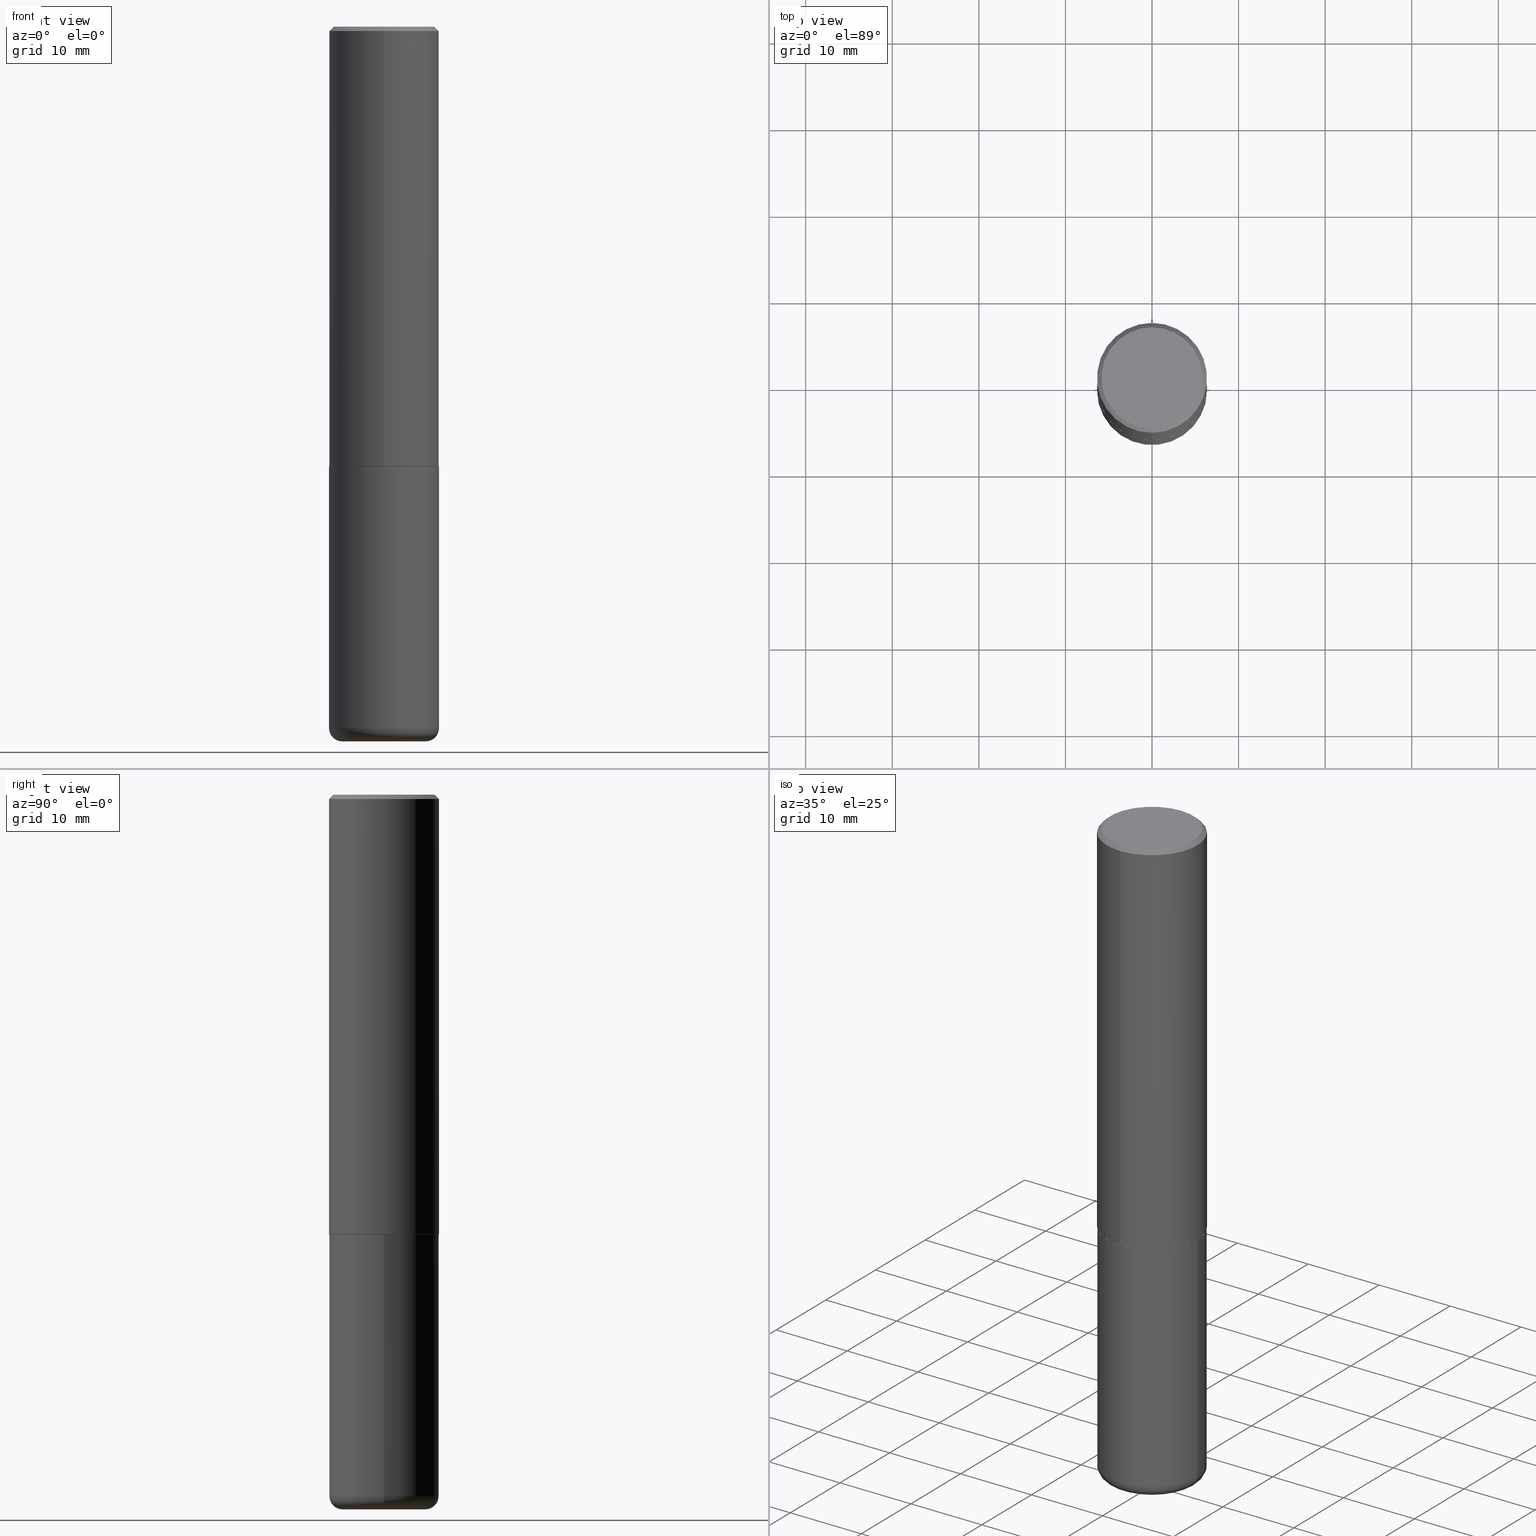
[diagram: canonical four-view strip — front | top / right | iso, engineering-drawing reading convention]
A machine part, canonical four-view strip (front | top / right | iso — engineering-drawing reading convention). The complete STEP part file that produces these views, byte-faithful:
ISO-10303-21;
HEADER;
FILE_DESCRIPTION (( 'STEP AP203' ),
    '1' );
FILE_NAME ('37193.STEP',
    '2024-03-01T21:40:54',
    ( '' ),
    ( '' ),
    'SwSTEP 2.0',
    'SolidWorks 2023',
    '' );
FILE_SCHEMA (( 'CONFIG_CONTROL_DESIGN' ));
ENDSEC;

DATA;
#1 = CARTESIAN_POINT ( 'NONE',  ( 4.890937612370273194E-29, -6.982962677686291165E-15, -2.000000000000000000 ) ) ;
#2 = ORIENTED_EDGE ( 'NONE', *, *, #35, .F. ) ;
#3 = AXIS2_PLACEMENT_3D ( 'NONE', #159, #384, #24 ) ;
#4 = LINE ( 'NONE', #234, #316 ) ;
#5 = EDGE_CURVE ( 'NONE', #296, #109, #32, .T. ) ;
#6 = ORIENTED_EDGE ( 'NONE', *, *, #71, .F. ) ;
#7 = LINE ( 'NONE', #360, #60 ) ;
#8 = ORIENTED_EDGE ( 'NONE', *, *, #16, .F. ) ;
#9 =( NAMED_UNIT ( * ) PLANE_ANGLE_UNIT ( ) SI_UNIT ( $, .RADIAN. ) );
#10 = VECTOR ( 'NONE', #123, 39.37007874015748143 ) ;
#11 = AXIS2_PLACEMENT_3D ( 'NONE', #41, #49, #271 ) ;
#12 = DIRECTION ( 'NONE',  ( -6.982962677686266711E-15, -1.000000000000000000, 3.491481338843145583E-15 ) ) ;
#13 = COORDINATED_UNIVERSAL_TIME_OFFSET ( 5, 0, .BEHIND. ) ;
#14 = ORIENTED_EDGE ( 'NONE', *, *, #314, .F. ) ;
#15 = DIRECTION ( 'NONE',  ( -2.444914538755677752E-29, 3.492275081349073750E-15, 1.000000000000000000 ) ) ;
#16 = EDGE_CURVE ( 'NONE', #335, #272, #388, .T. ) ;
#17 = AXIS2_PLACEMENT_3D ( 'NONE', #98, #253, #90 ) ;
#18 = ORIENTED_EDGE ( 'NONE', *, *, #127, .F. ) ;
#19 = COORDINATED_UNIVERSAL_TIME_OFFSET ( 5, 0, .BEHIND. ) ;
#20 = DIRECTION ( 'NONE',  ( -2.444914538755677752E-29, 3.492275081349073750E-15, 1.000000000000000000 ) ) ;
#21 = CALENDAR_DATE ( 2024, 1, 3 ) ;
#22 = CARTESIAN_POINT ( 'NONE',  ( 4.889829077511355503E-29, -6.984550162698146711E-15, -2.000000000000000000 ) ) ;
#23 = AXIS2_PLACEMENT_3D ( 'NONE', #269, #72, #233 ) ;
#24 = DIRECTION ( 'NONE',  ( -6.982962677686265133E-15, -1.000000000000000000, 3.291383124896702687E-15 ) ) ;
#25 = CARTESIAN_POINT ( 'NONE',  ( 4.889829077511355503E-29, -6.984550162698146711E-15, -2.000000000000000000 ) ) ;
#26 = DIRECTION ( 'NONE',  ( -6.982962677686265922E-15, -1.000000000000000000, 3.500180241882337261E-15 ) ) ;
#27 = DIRECTION ( 'NONE',  ( 1.000000000000000000, -6.982962677686263555E-15, 0.000000000000000000 ) ) ;
#28 = PERSON_AND_ORGANIZATION ( #393, #102 ) ;
#29 = PLANE ( 'NONE',  #402 ) ;
#30 = ADVANCED_FACE ( 'NONE', ( #79 ), #213, .T. ) ;
#31 = PERSON_AND_ORGANIZATION ( #393, #102 ) ;
#32 = CIRCLE ( 'NONE', #362, 0.05999999999999994227 ) ;
#33 = CIRCLE ( 'NONE', #174, 0.2500000000000000000 ) ;
#34 = VERTEX_POINT ( 'NONE', #405 ) ;
#35 = EDGE_CURVE ( 'NONE', #44, #109, #107, .T. ) ;
#36 = FACE_OUTER_BOUND ( 'NONE', #292, .T. ) ;
#37 = ORIENTED_EDGE ( 'NONE', *, *, #273, .T. ) ;
#38 = AXIS2_PLACEMENT_3D ( 'NONE', #221, #322, #350 ) ;
#39 = VERTEX_POINT ( 'NONE', #112 ) ;
#40 = ORIENTED_EDGE ( 'NONE', *, *, #127, .T. ) ;
#41 = CARTESIAN_POINT ( 'NONE',  ( 7.947773620101693940E-29, -1.134731435124022443E-14, -3.250000000000000000 ) ) ;
#42 = CARTESIAN_POINT ( 'NONE',  ( 0.000000000000000000, 0.000000000000000000, 0.000000000000000000 ) ) ;
#43 = MANIFOLD_SOLID_BREP ( 'Body-Move/Copy2[2]', #115 ) ;
#44 = VERTEX_POINT ( 'NONE', #120 ) ;
#45 = EDGE_CURVE ( 'NONE', #272, #335, #165, .T. ) ;
#46 = CIRCLE ( 'NONE', #330, 0.2500000000000000000 ) ;
#47 = AXIS2_PLACEMENT_3D ( 'NONE', #111, #78, #220 ) ;
#48 = ORIENTED_EDGE ( 'NONE', *, *, #45, .T. ) ;
#49 = DIRECTION ( 'NONE',  ( -2.445468806185136597E-29, 3.491481338843145583E-15, 1.000000000000000000 ) ) ;
#50 = DIRECTION ( 'NONE',  ( 1.000000000000000000, -6.982962677686266711E-15, 4.876176775795935793E-29 ) ) ;
#51 = EDGE_CURVE ( 'NONE', #39, #300, #373, .T. ) ;
#52 = ORIENTED_EDGE ( 'NONE', *, *, #100, .F. ) ;
#53 = CARTESIAN_POINT ( 'NONE',  ( 0.000000000000000000, 0.000000000000000000, 0.000000000000000000 ) ) ;
#54 = CC_DESIGN_PERSON_AND_ORGANIZATION_ASSIGNMENT ( #28, #158, ( #332 ) ) ;
#55 = AXIS2_PLACEMENT_3D ( 'NONE', #42, #366, #265 ) ;
#56 = PERSON_AND_ORGANIZATION ( #393, #102 ) ;
#57 = DIRECTION ( 'NONE',  ( 1.000000000000000000, -6.982962677686266711E-15, 0.000000000000000000 ) ) ;
#58 = DIRECTION ( 'NONE',  ( -2.445468806185136877E-29, 3.491481338843145188E-15, 1.000000000000000000 ) ) ;
#59 = CARTESIAN_POINT ( 'NONE',  ( -1.745740669421567467E-15, -0.2500000000000001110, 8.730687703372688319E-16 ) ) ;
#60 = VECTOR ( 'NONE', #170, 39.37007874015748143 ) ;
#61 = DIRECTION ( 'NONE',  ( -2.445468806185136597E-29, 3.491481338843145583E-15, 1.000000000000000000 ) ) ;
#62 = PERSON_AND_ORGANIZATION ( #393, #102 ) ;
#63 = DIRECTION ( 'NONE',  ( -2.445468806185136597E-29, 3.491481338843145583E-15, 1.000000000000000000 ) ) ;
#64 = ADVANCED_FACE ( 'NONE', ( #351 ), #197, .T. ) ;
#65 = DIRECTION ( 'NONE',  ( 1.000000000000000000, -6.982962677686266711E-15, 4.876176775795935793E-29 ) ) ;
#66 = COORDINATED_UNIVERSAL_TIME_OFFSET ( 5, 0, .BEHIND. ) ;
#67 = ORIENTED_EDGE ( 'NONE', *, *, #243, .F. ) ;
#68 = ORIENTED_EDGE ( 'NONE', *, *, #93, .F. ) ;
#69 = CARTESIAN_POINT ( 'NONE',  ( 1.772804125721499264E-15, 0.2489999999999930047, -2.000000000000000888 ) ) ;
#70 = CIRCLE ( 'NONE', #324, 0.2499999999999999722 ) ;
#71 = EDGE_CURVE ( 'NONE', #169, #329, #46, .T. ) ;
#72 = DIRECTION ( 'NONE',  ( -2.444914538755677752E-29, 3.492275081349073750E-15, 1.000000000000000000 ) ) ;
#73 = ORIENTED_EDGE ( 'NONE', *, *, #45, .F. ) ;
#74 = AXIS2_PLACEMENT_3D ( 'NONE', #202, #260, #389 ) ;
#75 = EDGE_LOOP ( 'NONE', ( #331, #207, #203, #52 ) ) ;
#76 = CARTESIAN_POINT ( 'NONE',  ( 0.000000000000000000, 0.000000000000000000, 0.000000000000000000 ) ) ;
#77 = DIRECTION ( 'NONE',  ( -1.000000000000000000, 6.982962677686265922E-15, -4.876176775795935793E-29 ) ) ;
#78 = DIRECTION ( 'NONE',  ( -2.445468806185136597E-29, 3.491481338843145583E-15, 1.000000000000000000 ) ) ;
#79 = FACE_OUTER_BOUND ( 'NONE', #75, .T. ) ;
#80 = FACE_OUTER_BOUND ( 'NONE', #145, .T. ) ;
#81 = CARTESIAN_POINT ( 'NONE',  ( 1.675911042644703774E-15, 0.2299999999999998990, -7.048649206616136781E-16 ) ) ;
#82 = DIMENSIONAL_EXPONENTS ( 1.000000000000000000, 0.000000000000000000, 0.000000000000000000, 0.000000000000000000, 0.000000000000000000, 0.000000000000000000, 0.000000000000000000 ) ;
#83 = DIRECTION ( 'NONE',  ( -2.444914538755677752E-29, 3.492275081349073750E-15, 1.000000000000000000 ) ) ;
#84 = CC_DESIGN_DATE_AND_TIME_ASSIGNMENT ( #279, #407, ( #114 ) ) ;
#85 = DIRECTION ( 'NONE',  ( -4.937700262164969294E-15, -0.7071067811866054154, 0.7071067811864896191 ) ) ;
#86 = LINE ( 'NONE', #413, #354 ) ;
#87 = AXIS2_PLACEMENT_3D ( 'NONE', #224, #245, #348 ) ;
#88 = LOCAL_TIME ( 16, 40, 54.00000000000000000, #19 ) ;
#89 = CARTESIAN_POINT ( 'NONE',  ( 4.889829077511369061E-31, -6.984550162698166284E-17, -0.02000000000000005593 ) ) ;
#90 = DIRECTION ( 'NONE',  ( -1.000000000000000000, 6.982962677686265922E-15, -4.876176775795935793E-29 ) ) ;
#91 = DATE_TIME_ROLE ( 'classification_date' ) ;
#92 = VERTEX_POINT ( 'NONE', #192 ) ;
#93 = EDGE_CURVE ( 'NONE', #196, #296, #143, .T. ) ;
#94 = ORIENTED_EDGE ( 'NONE', *, *, #334, .F. ) ;
#95 = AXIS2_PLACEMENT_3D ( 'NONE', #290, #235, #126 ) ;
#96 = ORIENTED_EDGE ( 'NONE', *, *, #35, .T. ) ;
#97 = CYLINDRICAL_SURFACE ( 'NONE', #23, 0.2500000000000001110 ) ;
#98 = CARTESIAN_POINT ( 'NONE',  ( 4.890937612370273194E-29, -6.982962677686291165E-15, -2.000000000000000000 ) ) ;
#99 = FACE_OUTER_BOUND ( 'NONE', #302, .T. ) ;
#100 = EDGE_CURVE ( 'NONE', #109, #329, #286, .T. ) ;
#101 = VECTOR ( 'NONE', #186, 39.37007874015748143 ) ;
#102 = ORGANIZATION ( 'UNSPECIFIED', 'UNSPECIFIED', '' ) ;
#103 = ORIENTED_EDGE ( 'NONE', *, *, #5, .T. ) ;
#104 = APPROVAL_STATUS ( 'not_yet_approved' ) ;
#105 = EDGE_LOOP ( 'NONE', ( #201, #40, #258, #177 ) ) ;
#106 = ADVANCED_FACE ( 'NONE', ( #250 ), #342, .T. ) ;
#107 = CIRCLE ( 'NONE', #410, 0.2499999999999999722 ) ;
#108 =( GEOMETRIC_REPRESENTATION_CONTEXT ( 3 ) GLOBAL_UNCERTAINTY_ASSIGNED_CONTEXT ( ( #193 ) ) GLOBAL_UNIT_ASSIGNED_CONTEXT ( ( #326, #9, #134 ) ) REPRESENTATION_CONTEXT ( 'NONE', 'WORKASPACE' ) );
#109 = VERTEX_POINT ( 'NONE', #285 ) ;
#110 = DIRECTION ( 'NONE',  ( -6.982962677686265133E-15, -1.000000000000000000, 3.291383124896702687E-15 ) ) ;
#111 = CARTESIAN_POINT ( 'NONE',  ( 7.801045491730585789E-29, -1.113782547090963453E-14, -3.189999999999999947 ) ) ;
#112 = CARTESIAN_POINT ( 'NONE',  ( -1.646519519465166770E-15, -0.2299999999999998990, 9.015816167589595013E-16 ) ) ;
#113 = APPROVAL_STATUS ( 'not_yet_approved' ) ;
#114 = PRODUCT_DEFINITION ( 'UNKNOWN', '', #332, #377 ) ;
#115 = CLOSED_SHELL ( 'NONE', ( #106, #318, #167, #135, #349, #404, #261, #172 ) ) ;
#116 = CARTESIAN_POINT ( 'NONE',  ( 7.801045491730585789E-29, -1.113782547090963453E-14, -3.189999999999999947 ) ) ;
#117 = AXIS2_PLACEMENT_3D ( 'NONE', #355, #131, #26 ) ;
#118 = APPROVAL_PERSON_ORGANIZATION ( #31, #358, #185 ) ;
#119 = CC_DESIGN_SECURITY_CLASSIFICATION ( #288, ( #332 ) ) ;
#120 = CARTESIAN_POINT ( 'NONE',  ( -0.2499999999999999167, -9.361468631509385644E-15, -3.189999999999999947 ) ) ;
#121 = DIRECTION ( 'NONE',  ( -6.982962677686265133E-15, -1.000000000000000000, 3.291383124896702687E-15 ) ) ;
#122 = EDGE_CURVE ( 'NONE', #92, #125, #252, .T. ) ;
#123 = DIRECTION ( 'NONE',  ( -4.851104656540956386E-15, -0.7071067811865489050, -0.7071067811865461294 ) ) ;
#124 = LOCAL_TIME ( 16, 40, 54.00000000000000000, #375 ) ;
#125 = VERTEX_POINT ( 'NONE', #317 ) ;
#126 = DIRECTION ( 'NONE',  ( -1.000000000000000000, 7.105427357600997914E-15, 0.000000000000000000 ) ) ;
#127 = EDGE_CURVE ( 'NONE', #39, #242, #411, .T. ) ;
#128 = DIRECTION ( 'NONE',  ( 1.000000000000000000, -6.982962677686266711E-15, 0.000000000000000000 ) ) ;
#129 = CIRCLE ( 'NONE', #262, 0.2299999999999998990 ) ;
#130 = APPROVAL_DATE_TIME ( #281, #208 ) ;
#131 = DIRECTION ( 'NONE',  ( -2.444914538755677752E-29, 3.492275081349073750E-15, 1.000000000000000000 ) ) ;
#132 = CARTESIAN_POINT ( 'NONE',  ( 4.889829077511355503E-29, -6.984550162698146711E-15, -2.000000000000000000 ) ) ;
#133 = ORIENTED_EDGE ( 'NONE', *, *, #334, .T. ) ;
#134 =( NAMED_UNIT ( * ) SI_UNIT ( $, .STERADIAN. ) SOLID_ANGLE_UNIT ( ) );
#135 = ADVANCED_FACE ( 'NONE', ( #80 ), #198, .T. ) ;
#136 = AXIS2_PLACEMENT_3D ( 'NONE', #154, #83, #378 ) ;
#137 = ORIENTED_EDGE ( 'NONE', *, *, #122, .F. ) ;
#138 = ORIENTED_EDGE ( 'NONE', *, *, #243, .T. ) ;
#139 = CALENDAR_DATE ( 2024, 1, 3 ) ;
#140 = FACE_OUTER_BOUND ( 'NONE', #168, .T. ) ;
#141 = APPROVAL_DATE_TIME ( #311, #358 ) ;
#142 = ORIENTED_EDGE ( 'NONE', *, *, #16, .T. ) ;
#143 = CIRCLE ( 'NONE', #415, 0.1899999999999999745 ) ;
#144 = VECTOR ( 'NONE', #398, 39.37007874015748143 ) ;
#145 = EDGE_LOOP ( 'NONE', ( #18, #230, #37, #312 ) ) ;
#146 = APPLICATION_CONTEXT ( 'configuration controlled 3d designs of mechanical parts and assemblies' ) ;
#147 = FACE_OUTER_BOUND ( 'NONE', #162, .T. ) ;
#148 = EDGE_LOOP ( 'NONE', ( #182, #295, #103, #2 ) ) ;
#149 = EDGE_CURVE ( 'NONE', #272, #34, #86, .T. ) ;
#150 = CALENDAR_DATE ( 2024, 1, 3 ) ;
#151 = DIRECTION ( 'NONE',  ( -6.982962677686266711E-15, -1.000000000000000000, 3.278217592397113101E-15 ) ) ;
#152 = PRODUCT_DEFINITION_SHAPE ( 'NONE', 'NONE',  #114 ) ;
#153 = DIRECTION ( 'NONE',  ( -6.982962677686265922E-15, -1.000000000000000000, 3.492275081349073750E-15 ) ) ;
#154 = CARTESIAN_POINT ( 'NONE',  ( -2.404777551521915738E-45, 3.434944079330397096E-31, 9.835834804867292393E-17 ) ) ;
#155 = CIRCLE ( 'NONE', #117, 0.2500000000000000000 ) ;
#156 = CARTESIAN_POINT ( 'NONE',  ( 1.776356839400251254E-15, 0.2500000000000001110, -8.730687703372688319E-16 ) ) ;
#157 = DIRECTION ( 'NONE',  ( -2.445468806185136597E-29, 3.491481338843145583E-15, 1.000000000000000000 ) ) ;
#158 = PERSON_AND_ORGANIZATION_ROLE ( 'design_supplier' ) ;
#159 = CARTESIAN_POINT ( 'NONE',  ( 4.889829077511355503E-29, -6.984550162698146711E-15, -2.000000000000000000 ) ) ;
#160 = PERSON_AND_ORGANIZATION_ROLE ( 'classification_officer' ) ;
#161 = VECTOR ( 'NONE', #227, 39.37007874015748143 ) ;
#162 = EDGE_LOOP ( 'NONE', ( #94, #142, #391, #67 ) ) ;
#163 = ORIENTED_EDGE ( 'NONE', *, *, #417, .F. ) ;
#164 = PLANE ( 'NONE',  #254 ) ;
#165 = CIRCLE ( 'NONE', #222, 0.2489999999999999991 ) ;
#166 = CC_DESIGN_APPROVAL ( #385, ( #114 ) ) ;
#167 = ADVANCED_FACE ( 'NONE', ( #223 ), #228, .T. ) ;
#168 = EDGE_LOOP ( 'NONE', ( #14, #68 ) ) ;
#169 = VERTEX_POINT ( 'NONE', #190 ) ;
#170 = DIRECTION ( 'NONE',  ( 5.024295867788490741E-15, 0.7071067811866103003, 0.7071067811864847341 ) ) ;
#171 = APPLICATION_PROTOCOL_DEFINITION ( 'international standard', 'config_control_design', 1994, #146 ) ;
#172 = ADVANCED_FACE ( 'NONE', ( #319 ), #29, .F. ) ;
#173 = AXIS2_PLACEMENT_3D ( 'NONE', #307, #15, #110 ) ;
#174 = AXIS2_PLACEMENT_3D ( 'NONE', #356, #263, #328 ) ;
#175 = ORIENTED_EDGE ( 'NONE', *, *, #314, .T. ) ;
#176 = FACE_OUTER_BOUND ( 'NONE', #325, .T. ) ;
#177 = ORIENTED_EDGE ( 'NONE', *, *, #273, .F. ) ;
#178 = SHAPE_DEFINITION_REPRESENTATION ( #152, #323 ) ;
#179 = CARTESIAN_POINT ( 'NONE',  ( 0.1899999999999999745, -1.246458837967002615E-14, -3.189999999999999947 ) ) ;
#180 = DIRECTION ( 'NONE',  ( -2.444914538755677752E-29, 3.492275081349073750E-15, 1.000000000000000000 ) ) ;
#181 = AXIS2_PLACEMENT_3D ( 'NONE', #1, #257, #128 ) ;
#182 = ORIENTED_EDGE ( 'NONE', *, *, #268, .F. ) ;
#183 = EDGE_CURVE ( 'NONE', #34, #92, #215, .T. ) ;
#184 = DIRECTION ( 'NONE',  ( 6.982962677686265922E-15, 1.000000000000000000, -3.500180241882337261E-15 ) ) ;
#185 = APPROVAL_ROLE ( '' ) ;
#186 = DIRECTION ( 'NONE',  ( -2.444914538755678032E-29, 3.492275081349073750E-15, 1.000000000000000000 ) ) ;
#187 = DIRECTION ( 'NONE',  ( -2.445468806185136597E-29, 3.491481338843145583E-15, 1.000000000000000000 ) ) ;
#188 = CONICAL_SURFACE ( 'NONE', #3, 0.2489999999999999991, 0.7853981633975336552 ) ;
#189 =( LENGTH_UNIT ( ) NAMED_UNIT ( * ) SI_UNIT ( $, .METRE. ) );
#190 = CARTESIAN_POINT ( 'NONE',  ( -0.2500000000000000000, -7.284037234897712778E-15, -2.000000000000000000 ) ) ;
#191 = PERSON_AND_ORGANIZATION ( #393, #102 ) ;
#192 = CARTESIAN_POINT ( 'NONE',  ( 1.776356839400276103E-15, 0.2499999999999933109, -1.999000000000000776 ) ) ;
#193 = UNCERTAINTY_MEASURE_WITH_UNIT (LENGTH_MEASURE( 1.000000000000000082E-05 ), #326, 'distance_accuracy_value', 'NONE');
#194 = DIRECTION ( 'NONE',  ( 1.000000000000000000, -6.982962677686263555E-15, 0.000000000000000000 ) ) ;
#195 = CC_DESIGN_PERSON_AND_ORGANIZATION_ASSIGNMENT ( #333, #359, ( #392 ) ) ;
#196 = VERTEX_POINT ( 'NONE', #280 ) ;
#197 = TOROIDAL_SURFACE ( 'NONE', #87, 0.1899999999999999745, 0.05999999999999994227 ) ;
#198 = CONICAL_SURFACE ( 'NONE', #336, 0.2500000000000000000, 0.7853981633974468357 ) ;
#199 = LOCAL_TIME ( 16, 40, 54.00000000000000000, #239 ) ;
#200 = LENGTH_MEASURE_WITH_UNIT ( LENGTH_MEASURE( 0.02539999999999999897 ), #189 );
#201 = ORIENTED_EDGE ( 'NONE', *, *, #51, .F. ) ;
#202 = CARTESIAN_POINT ( 'NONE',  ( 4.887384162972599193E-29, -6.981057887616797828E-15, -1.998999999999999888 ) ) ;
#203 = ORIENTED_EDGE ( 'NONE', *, *, #219, .F. ) ;
#204 = ORIENTED_EDGE ( 'NONE', *, *, #183, .F. ) ;
#205 = LOCAL_TIME ( 16, 40, 54.00000000000000000, #13 ) ;
#206 = EDGE_LOOP ( 'NONE', ( #48, #133, #204, #305 ) ) ;
#207 = ORIENTED_EDGE ( 'NONE', *, *, #225, .T. ) ;
#208 = APPROVAL ( #113, 'UNSPECIFIED' ) ;
#209 = AXIS2_PLACEMENT_3D ( 'NONE', #76, #212, #266 ) ;
#210 = CYLINDRICAL_SURFACE ( 'NONE', #416, 0.2500000000000000000 ) ;
#211 = CALENDAR_DATE ( 2024, 1, 3 ) ;
#212 = DIRECTION ( 'NONE',  ( -2.444914538755677752E-29, 3.492275081349073750E-15, 1.000000000000000000 ) ) ;
#213 = CYLINDRICAL_SURFACE ( 'NONE', #401, 0.2500000000000000000 ) ;
#214 = LINE ( 'NONE', #59, #144 ) ;
#215 = CIRCLE ( 'NONE', #353, 0.2500000000000002220 ) ;
#216 = DIRECTION ( 'NONE',  ( 2.444914538755677191E-29, -3.492275081349073750E-15, -1.000000000000000000 ) ) ;
#217 = PERSON_AND_ORGANIZATION ( #393, #102 ) ;
#218 = CARTESIAN_POINT ( 'NONE',  ( 4.890937612370273194E-29, -6.982962677686291165E-15, -2.000000000000000000 ) ) ;
#219 = EDGE_CURVE ( 'NONE', #329, #169, #343, .T. ) ;
#220 = DIRECTION ( 'NONE',  ( 1.000000000000000000, -6.982962677686265133E-15, 4.883557194083112340E-29 ) ) ;
#221 = CARTESIAN_POINT ( 'NONE',  ( 4.889829077511369061E-31, -6.984550162698166284E-17, -0.02000000000000005593 ) ) ;
#222 = AXIS2_PLACEMENT_3D ( 'NONE', #22, #315, #249 ) ;
#223 = FACE_OUTER_BOUND ( 'NONE', #105, .T. ) ;
#224 = CARTESIAN_POINT ( 'NONE',  ( 7.801045491730585789E-29, -1.113782547090963453E-14, -3.189999999999999947 ) ) ;
#225 = EDGE_CURVE ( 'NONE', #44, #169, #4, .T. ) ;
#226 = DIRECTION ( 'NONE',  ( -2.445468806185136877E-29, 3.491481338843145188E-15, 1.000000000000000000 ) ) ;
#227 = DIRECTION ( 'NONE',  ( 4.937700262164540154E-15, 0.7071067811865440200, -0.7071067811865510144 ) ) ;
#228 = CONICAL_SURFACE ( 'NONE', #38, 0.2500000000000000000, 0.7853981633974468357 ) ;
#229 = APPLICATION_PROTOCOL_DEFINITION ( 'international standard', 'config_control_design', 1994, #247 ) ;
#230 = ORIENTED_EDGE ( 'NONE', *, *, #379, .F. ) ;
#231 = LINE ( 'NONE', #387, #161 ) ;
#232 = ORIENTED_EDGE ( 'NONE', *, *, #71, .T. ) ;
#233 = DIRECTION ( 'NONE',  ( -6.982962677686266711E-15, -1.000000000000000000, 3.492275081349073750E-15 ) ) ;
#234 = CARTESIAN_POINT ( 'NONE',  ( -0.2500000000000000000, 1.776356839400250465E-15, -1.229733772563726445E-29 ) ) ;
#235 = DIRECTION ( 'NONE',  ( 7.105427357601001859E-15, 1.000000000000000000, -3.491481338843145583E-15 ) ) ;
#236 = VECTOR ( 'NONE', #58, 39.37007874015748143 ) ;
#237 = AXIS2_PLACEMENT_3D ( 'NONE', #408, #400, #77 ) ;
#238 = CC_DESIGN_PERSON_AND_ORGANIZATION_ASSIGNMENT ( #56, #313, ( #114 ) ) ;
#239 = COORDINATED_UNIVERSAL_TIME_OFFSET ( 5, 0, .BEHIND. ) ;
#240 = DIRECTION ( 'NONE',  ( 1.000000000000000000, -6.982962677686274599E-15, 0.000000000000000000 ) ) ;
#241 = TOROIDAL_SURFACE ( 'NONE', #47, 0.1899999999999999745, 0.05999999999999994227 ) ;
#242 = VERTEX_POINT ( 'NONE', #352 ) ;
#243 = EDGE_CURVE ( 'NONE', #92, #34, #274, .T. ) ;
#244 = FACE_OUTER_BOUND ( 'NONE', #395, .T. ) ;
#245 = DIRECTION ( 'NONE',  ( -2.445468806185136597E-29, 3.491481338843145583E-15, 1.000000000000000000 ) ) ;
#246 = APPROVAL_ROLE ( '' ) ;
#247 = APPLICATION_CONTEXT ( 'configuration controlled 3d designs of mechanical parts and assemblies' ) ;
#248 = CC_DESIGN_PERSON_AND_ORGANIZATION_ASSIGNMENT ( #62, #320, ( #332 ) ) ;
#249 = DIRECTION ( 'NONE',  ( -6.982962677686265133E-15, -1.000000000000000000, 3.291383124896702687E-15 ) ) ;
#250 = FACE_OUTER_BOUND ( 'NONE', #206, .T. ) ;
#251 = CARTESIAN_POINT ( 'NONE',  ( -1.715124499442882299E-15, -0.2500000000000000555, -0.01999999999999918163 ) ) ;
#252 = LINE ( 'NONE', #156, #101 ) ;
#253 = DIRECTION ( 'NONE',  ( 2.438088387897960049E-29, -3.491481338843145188E-15, -1.000000000000000000 ) ) ;
#254 = AXIS2_PLACEMENT_3D ( 'NONE', #132, #390, #153 ) ;
#255 = CALENDAR_DATE ( 2024, 1, 3 ) ;
#256 = EDGE_CURVE ( 'NONE', #125, #242, #33, .T. ) ;
#257 = DIRECTION ( 'NONE',  ( -2.445468806185136597E-29, 3.491481338843145583E-15, 1.000000000000000000 ) ) ;
#258 = ORIENTED_EDGE ( 'NONE', *, *, #282, .T. ) ;
#259 = CARTESIAN_POINT ( 'NONE',  ( -1.738757706743831162E-15, -0.2490000000000069935, -1.999999999999999112 ) ) ;
#260 = DIRECTION ( 'NONE',  ( -2.444914538755677752E-29, 3.492275081349073750E-15, 1.000000000000000000 ) ) ;
#261 = ADVANCED_FACE ( 'NONE', ( #36 ), #164, .F. ) ;
#262 = AXIS2_PLACEMENT_3D ( 'NONE', #403, #180, #310 ) ;
#263 = DIRECTION ( 'NONE',  ( -2.444914538755677752E-29, 3.492275081349073750E-15, 1.000000000000000000 ) ) ;
#264 = ORIENTED_EDGE ( 'NONE', *, *, #5, .F. ) ;
#265 = DIRECTION ( 'NONE',  ( 1.000000000000000000, 0.000000000000000000, 0.000000000000000000 ) ) ;
#266 = DIRECTION ( 'NONE',  ( -6.982962677686266711E-15, -1.000000000000000000, 3.492275081349073750E-15 ) ) ;
#267 = CIRCLE ( 'NONE', #95, 0.05999999999999994227 ) ;
#268 = EDGE_CURVE ( 'NONE', #196, #44, #267, .T. ) ;
#269 = CARTESIAN_POINT ( 'NONE',  ( 0.000000000000000000, 0.000000000000000000, 0.000000000000000000 ) ) ;
#270 = ORIENTED_EDGE ( 'NONE', *, *, #304, .F. ) ;
#271 = DIRECTION ( 'NONE',  ( 1.000000000000000000, -6.982962677686261977E-15, 0.000000000000000000 ) ) ;
#272 = VERTEX_POINT ( 'NONE', #259 ) ;
#273 = EDGE_CURVE ( 'NONE', #300, #125, #231, .T. ) ;
#274 = CIRCLE ( 'NONE', #74, 0.2500000000000002220 ) ;
#275 = PLANE ( 'NONE',  #237 ) ;
#276 = ORIENTED_EDGE ( 'NONE', *, *, #256, .F. ) ;
#277 = APPROVAL_DATE_TIME ( #399, #385 ) ;
#278 = CARTESIAN_POINT ( 'NONE',  ( 1.606081415867840476E-15, 0.2299999999999998990, -7.540440946859502079E-16 ) ) ;
#279 = DATE_AND_TIME ( #150, #88 ) ;
#280 = CARTESIAN_POINT ( 'NONE',  ( -0.1899999999999999745, -9.679375892402709259E-15, -3.250000000000000000 ) ) ;
#281 = DATE_AND_TIME ( #21, #124 ) ;
#282 = EDGE_CURVE ( 'NONE', #242, #125, #155, .T. ) ;
#283 = CIRCLE ( 'NONE', #11, 0.1899999999999999745 ) ;
#284 = CARTESIAN_POINT ( 'NONE',  ( 0.000000000000000000, 0.000000000000000000, 0.000000000000000000 ) ) ;
#285 = CARTESIAN_POINT ( 'NONE',  ( 0.2499999999999999167, -1.288356614033120121E-14, -3.189999999999999947 ) ) ;
#286 = LINE ( 'NONE', #372, #236 ) ;
#287 = SECURITY_CLASSIFICATION_LEVEL ( 'unclassified' ) ;
#288 = SECURITY_CLASSIFICATION ( '', '', #287 ) ;
#289 = ORIENTED_EDGE ( 'NONE', *, *, #379, .T. ) ;
#290 = CARTESIAN_POINT ( 'NONE',  ( -0.1899999999999999745, -9.787794272965444556E-15, -3.189999999999999947 ) ) ;
#291 = ADVANCED_FACE ( 'NONE', ( #244 ), #241, .T. ) ;
#292 = EDGE_LOOP ( 'NONE', ( #73, #8 ) ) ;
#293 = CC_DESIGN_DATE_AND_TIME_ASSIGNMENT ( #383, #91, ( #288 ) ) ;
#294 = FACE_OUTER_BOUND ( 'NONE', #386, .T. ) ;
#295 = ORIENTED_EDGE ( 'NONE', *, *, #93, .T. ) ;
#296 = VERTEX_POINT ( 'NONE', #347 ) ;
#297 = FACE_OUTER_BOUND ( 'NONE', #327, .T. ) ;
#298 = ORIENTED_EDGE ( 'NONE', *, *, #100, .T. ) ;
#299 = MECHANICAL_CONTEXT ( 'NONE', #146, 'mechanical' ) ;
#300 = VERTEX_POINT ( 'NONE', #81 ) ;
#301 = LOCAL_TIME ( 16, 40, 54.00000000000000000, #66 ) ;
#302 = EDGE_LOOP ( 'NONE', ( #137, #138, #357, #276 ) ) ;
#303 = APPROVAL_ROLE ( '' ) ;
#304 = EDGE_CURVE ( 'NONE', #34, #242, #214, .T. ) ;
#305 = ORIENTED_EDGE ( 'NONE', *, *, #149, .F. ) ;
#306 = CC_DESIGN_PERSON_AND_ORGANIZATION_ASSIGNMENT ( #414, #160, ( #288 ) ) ;
#307 = CARTESIAN_POINT ( 'NONE',  ( 4.889829077511355503E-29, -6.984550162698146711E-15, -2.000000000000000000 ) ) ;
#308 = CLOSED_SHELL ( 'NONE', ( #30, #291, #345, #361, #64, #369 ) ) ;
#309 = APPROVAL_PERSON_ORGANIZATION ( #191, #385, #303 ) ;
#310 = DIRECTION ( 'NONE',  ( -6.982962677686265922E-15, -1.000000000000000000, 3.492275081349073750E-15 ) ) ;
#311 = DATE_AND_TIME ( #211, #199 ) ;
#312 = ORIENTED_EDGE ( 'NONE', *, *, #256, .T. ) ;
#313 = PERSON_AND_ORGANIZATION_ROLE ( 'creator' ) ;
#314 = EDGE_CURVE ( 'NONE', #296, #196, #283, .T. ) ;
#315 = DIRECTION ( 'NONE',  ( -2.444914538755677752E-29, 3.492275081349073750E-15, 1.000000000000000000 ) ) ;
#316 = VECTOR ( 'NONE', #226, 39.37007874015748143 ) ;
#317 = CARTESIAN_POINT ( 'NONE',  ( 1.745740669421566875E-15, 0.2499999999999999167, -0.02000000000000093023 ) ) ;
#318 = ADVANCED_FACE ( 'NONE', ( #176 ), #397, .T. ) ;
#319 = FACE_OUTER_BOUND ( 'NONE', #338, .T. ) ;
#320 = PERSON_AND_ORGANIZATION_ROLE ( 'creator' ) ;
#321 = MANIFOLD_SOLID_BREP ( 'Body-Move/Copy2[1]', #308 ) ;
#322 = DIRECTION ( 'NONE',  ( 2.444914538755677752E-29, -3.492275081349073750E-15, -1.000000000000000000 ) ) ;
#323 = ADVANCED_BREP_SHAPE_REPRESENTATION ( '37193', ( #321, #43, #55 ), #108 ) ;
#324 = AXIS2_PLACEMENT_3D ( 'NONE', #381, #63, #194 ) ;
#325 = EDGE_LOOP ( 'NONE', ( #368, #341, #396, #270 ) ) ;
#326 =( CONVERSION_BASED_UNIT ( 'INCH', #200 ) LENGTH_UNIT ( ) NAMED_UNIT ( #82 ) );
#327 = EDGE_LOOP ( 'NONE', ( #340, #232 ) ) ;
#328 = DIRECTION ( 'NONE',  ( -6.982962677686265922E-15, -1.000000000000000000, 3.500180241882337261E-15 ) ) ;
#329 = VERTEX_POINT ( 'NONE', #339 ) ;
#330 = AXIS2_PLACEMENT_3D ( 'NONE', #218, #157, #57 ) ;
#331 = ORIENTED_EDGE ( 'NONE', *, *, #417, .T. ) ;
#332 = PRODUCT_DEFINITION_FORMATION_WITH_SPECIFIED_SOURCE ( 'ANY', '', #392, .NOT_KNOWN. ) ;
#333 = PERSON_AND_ORGANIZATION ( #393, #102 ) ;
#334 = EDGE_CURVE ( 'NONE', #335, #92, #7, .T. ) ;
#335 = VERTEX_POINT ( 'NONE', #69 ) ;
#336 = AXIS2_PLACEMENT_3D ( 'NONE', #89, #380, #184 ) ;
#337 = DIRECTION ( 'NONE',  ( -2.445468806185136597E-29, 3.491481338843145583E-15, 1.000000000000000000 ) ) ;
#338 = EDGE_LOOP ( 'NONE', ( #289, #418 ) ) ;
#339 = CARTESIAN_POINT ( 'NONE',  ( 0.2500000000000000000, -8.728703347107857054E-15, -2.000000000000000000 ) ) ;
#340 = ORIENTED_EDGE ( 'NONE', *, *, #219, .T. ) ;
#341 = ORIENTED_EDGE ( 'NONE', *, *, #122, .T. ) ;
#342 = CONICAL_SURFACE ( 'NONE', #394, 0.2489999999999999991, 0.7853981633975336552 ) ;
#343 = CIRCLE ( 'NONE', #181, 0.2500000000000000000 ) ;
#344 = CARTESIAN_POINT ( 'NONE',  ( 4.887384162972599193E-29, -6.981057887616797828E-15, -1.998999999999999888 ) ) ;
#345 = ADVANCED_FACE ( 'NONE', ( #297 ), #365, .F. ) ;
#346 = DIRECTION ( 'NONE',  ( 1.000000000000000000, -6.982962677686261977E-15, 0.000000000000000000 ) ) ;
#347 = CARTESIAN_POINT ( 'NONE',  ( 0.1899999999999999745, -1.267407726000061289E-14, -3.250000000000000000 ) ) ;
#348 = DIRECTION ( 'NONE',  ( 1.000000000000000000, -6.982962677686265133E-15, 4.883557194083112340E-29 ) ) ;
#349 = ADVANCED_FACE ( 'NONE', ( #99 ), #97, .T. ) ;
#350 = DIRECTION ( 'NONE',  ( 6.982962677686265922E-15, 1.000000000000000000, -3.500180241882337261E-15 ) ) ;
#351 = FACE_OUTER_BOUND ( 'NONE', #148, .T. ) ;
#352 = CARTESIAN_POINT ( 'NONE',  ( -1.715124499442882299E-15, -0.2500000000000000555, -0.01999999999999918163 ) ) ;
#353 = AXIS2_PLACEMENT_3D ( 'NONE', #344, #20, #151 ) ;
#354 = VECTOR ( 'NONE', #85, 39.37007874015748143 ) ;
#355 = CARTESIAN_POINT ( 'NONE',  ( 4.889829077511369061E-31, -6.984550162698166284E-17, -0.02000000000000005593 ) ) ;
#356 = CARTESIAN_POINT ( 'NONE',  ( 4.889829077511369061E-31, -6.984550162698166284E-17, -0.02000000000000005593 ) ) ;
#357 = ORIENTED_EDGE ( 'NONE', *, *, #304, .T. ) ;
#358 = APPROVAL ( #367, 'UNSPECIFIED' ) ;
#359 = PERSON_AND_ORGANIZATION_ROLE ( 'design_owner' ) ;
#360 = CARTESIAN_POINT ( 'NONE',  ( 1.769251412042698169E-15, 0.2489999999999930047, -2.000000000000000888 ) ) ;
#361 = ADVANCED_FACE ( 'NONE', ( #294 ), #210, .T. ) ;
#362 = AXIS2_PLACEMENT_3D ( 'NONE', #179, #12, #240 ) ;
#363 = CC_DESIGN_APPROVAL ( #208, ( #332 ) ) ;
#364 = CC_DESIGN_APPROVAL ( #358, ( #288 ) ) ;
#365 = PLANE ( 'NONE',  #17 ) ;
#366 = DIRECTION ( 'NONE',  ( 0.000000000000000000, 0.000000000000000000, 1.000000000000000000 ) ) ;
#367 = APPROVAL_STATUS ( 'not_yet_approved' ) ;
#368 = ORIENTED_EDGE ( 'NONE', *, *, #183, .T. ) ;
#369 = ADVANCED_FACE ( 'NONE', ( #140 ), #275, .T. ) ;
#370 = ORIENTED_EDGE ( 'NONE', *, *, #225, .F. ) ;
#371 = ORIENTED_EDGE ( 'NONE', *, *, #268, .T. ) ;
#372 = CARTESIAN_POINT ( 'NONE',  ( 0.2500000000000000000, -1.745740669421566678E-15, 1.219044193948983948E-29 ) ) ;
#373 = CIRCLE ( 'NONE', #136, 0.2299999999999998990 ) ;
#374 = APPROVAL_PERSON_ORGANIZATION ( #217, #208, #246 ) ;
#375 = COORDINATED_UNIVERSAL_TIME_OFFSET ( 5, 0, .BEHIND. ) ;
#376 = DIRECTION ( 'NONE',  ( -2.445468806185136597E-29, 3.491481338843145583E-15, 1.000000000000000000 ) ) ;
#377 = DESIGN_CONTEXT ( 'detailed design', #247, 'design' ) ;
#378 = DIRECTION ( 'NONE',  ( -6.982962677686265922E-15, -1.000000000000000000, 3.492275081349073750E-15 ) ) ;
#379 = EDGE_CURVE ( 'NONE', #300, #39, #129, .T. ) ;
#380 = DIRECTION ( 'NONE',  ( 2.444914538755677752E-29, -3.492275081349073750E-15, -1.000000000000000000 ) ) ;
#381 = CARTESIAN_POINT ( 'NONE',  ( 7.801045491730585789E-29, -1.113782547090963453E-14, -3.189999999999999947 ) ) ;
#382 = CARTESIAN_POINT ( 'NONE',  ( 7.947773620101693940E-29, -1.134731435124022443E-14, -3.250000000000000000 ) ) ;
#383 = DATE_AND_TIME ( #255, #301 ) ;
#384 = DIRECTION ( 'NONE',  ( -2.444914538755677752E-29, 3.492275081349073750E-15, 1.000000000000000000 ) ) ;
#385 = APPROVAL ( #104, 'UNSPECIFIED' ) ;
#386 = EDGE_LOOP ( 'NONE', ( #370, #96, #298, #6 ) ) ;
#387 = CARTESIAN_POINT ( 'NONE',  ( 1.745740669421566875E-15, 0.2499999999999999167, -0.02000000000000093023 ) ) ;
#388 = CIRCLE ( 'NONE', #173, 0.2489999999999999991 ) ;
#389 = DIRECTION ( 'NONE',  ( -6.982962677686266711E-15, -1.000000000000000000, 3.278217592397113101E-15 ) ) ;
#390 = DIRECTION ( 'NONE',  ( -2.444914538755677191E-29, 3.492275081349073750E-15, 1.000000000000000000 ) ) ;
#391 = ORIENTED_EDGE ( 'NONE', *, *, #149, .T. ) ;
#392 = PRODUCT ( '37193', '37193', '', ( #299 ) ) ;
#393 = PERSON ( 'UNSPECIFIED', 'UNSPECIFIED', 'UNSPECIFIED', ('UNSPECIFIED'), ('UNSPECIFIED'), ('UNSPECIFIED') ) ;
#394 = AXIS2_PLACEMENT_3D ( 'NONE', #25, #412, #121 ) ;
#395 = EDGE_LOOP ( 'NONE', ( #175, #371, #163, #264 ) ) ;
#396 = ORIENTED_EDGE ( 'NONE', *, *, #282, .F. ) ;
#397 = CYLINDRICAL_SURFACE ( 'NONE', #209, 0.2500000000000001110 ) ;
#398 = DIRECTION ( 'NONE',  ( -2.444914538755678032E-29, 3.492275081349073750E-15, 1.000000000000000000 ) ) ;
#399 = DATE_AND_TIME ( #139, #205 ) ;
#400 = DIRECTION ( 'NONE',  ( 2.438088387897960049E-29, -3.491481338843145188E-15, -1.000000000000000000 ) ) ;
#401 = AXIS2_PLACEMENT_3D ( 'NONE', #284, #376, #65 ) ;
#402 = AXIS2_PLACEMENT_3D ( 'NONE', #278, #216, #409 ) ;
#403 = CARTESIAN_POINT ( 'NONE',  ( -2.404777551521915738E-45, 3.434944079330397096E-31, 9.835834804867292393E-17 ) ) ;
#404 = ADVANCED_FACE ( 'NONE', ( #147 ), #188, .T. ) ;
#405 = CARTESIAN_POINT ( 'NONE',  ( -1.745740669421519346E-15, -0.2500000000000072164, -1.998999999999999000 ) ) ;
#406 = PRODUCT_RELATED_PRODUCT_CATEGORY ( 'detail', '', ( #392 ) ) ;
#407 = DATE_TIME_ROLE ( 'creation_date' ) ;
#408 = CARTESIAN_POINT ( 'NONE',  ( 7.947773620101693940E-29, -1.134731435124022443E-14, -3.250000000000000000 ) ) ;
#409 = DIRECTION ( 'NONE',  ( 6.982962677686265922E-15, 1.000000000000000000, -3.492275081349073750E-15 ) ) ;
#410 = AXIS2_PLACEMENT_3D ( 'NONE', #116, #187, #27 ) ;
#411 = LINE ( 'NONE', #251, #10 ) ;
#412 = DIRECTION ( 'NONE',  ( -2.444914538755677752E-29, 3.492275081349073750E-15, 1.000000000000000000 ) ) ;
#413 = CARTESIAN_POINT ( 'NONE',  ( -1.738757706743831162E-15, -0.2490000000000069935, -1.999999999999999112 ) ) ;
#414 = PERSON_AND_ORGANIZATION ( #393, #102 ) ;
#415 = AXIS2_PLACEMENT_3D ( 'NONE', #382, #61, #346 ) ;
#416 = AXIS2_PLACEMENT_3D ( 'NONE', #53, #337, #50 ) ;
#417 = EDGE_CURVE ( 'NONE', #109, #44, #70, .T. ) ;
#418 = ORIENTED_EDGE ( 'NONE', *, *, #51, .T. ) ;
ENDSEC;
END-ISO-10303-21;
